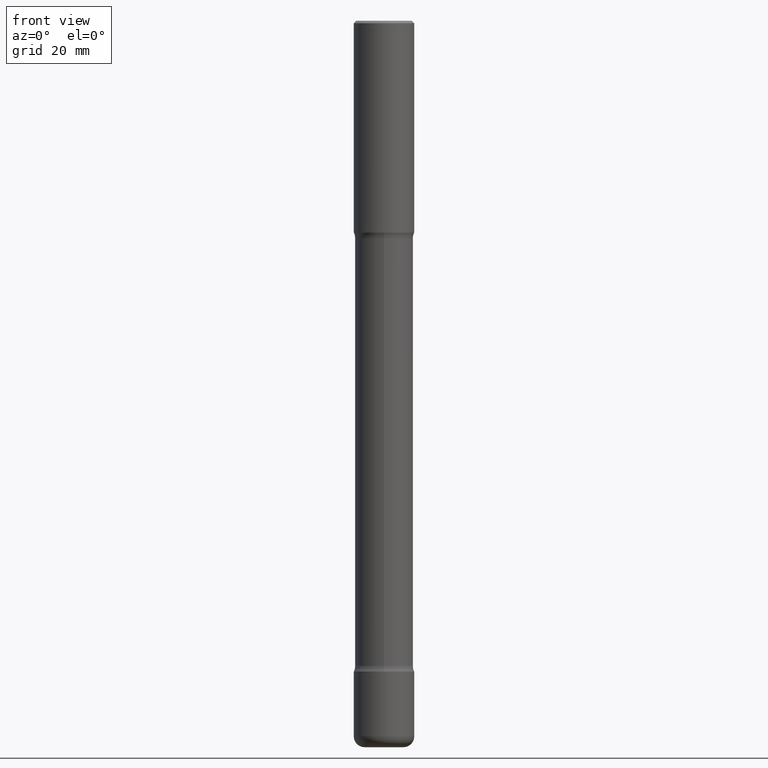
[diagram: clean part render]
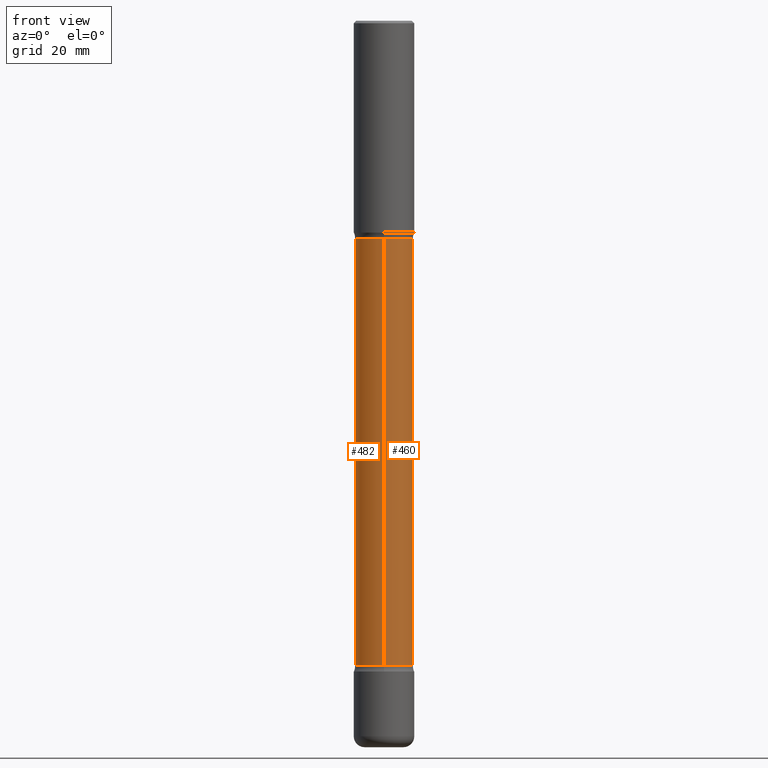
[diagram: same view with one multi-face feature highlighted, each face labeled with its STEP entity id]
A machine part, front view. The highlighted faces form ONE feature: a constant-radius fillet chain: 2 tangent blend faces with common blend radius 6.096 mm. The faces share edges in the B-rep.
Their STEP definitions:
[1] entity #482 (Cylinder):
#4 = DIRECTION ( 'NONE',  ( 2.598079946832093802E-29, -3.272933499350004920E-15, -1.000000000000000000 ) ) ;
#36 = CARTESIAN_POINT ( 'NONE',  ( 1.675911042644833344E-15, 0.2399999999999813116, -5.326010205144338983 ) ) ;
#45 = DIRECTION ( 'NONE',  ( 2.598079946832093802E-29, -3.272933499350004525E-15, -1.000000000000000000 ) ) ;
#53 = EDGE_CURVE ( 'NONE', #251, #142, #225, .T. ) ;
#73 = AXIS2_PLACEMENT_3D ( 'NONE', #444, #4, #183 ) ;
#79 = CARTESIAN_POINT ( 'NONE',  ( -1.680822009453992684E-15, -0.2400000000000076239, -1.798989794855665236 ) ) ;
#84 = EDGE_CURVE ( 'NONE', #142, #150, #239, .T. ) ;
#85 = CYLINDRICAL_SURFACE ( 'NONE', #303, 0.2400000000000002409 ) ;
#87 = DIRECTION ( 'NONE',  ( 2.598079946832093802E-29, -3.272933499350004920E-15, -1.000000000000000000 ) ) ;
#101 = DIRECTION ( 'NONE',  ( 2.598079946832093802E-29, -3.272933499350004525E-15, -1.000000000000000000 ) ) ;
#126 = EDGE_CURVE ( 'NONE', #251, #405, #421, .T. ) ;
#139 = VECTOR ( 'NONE', #45, 39.37007874015748143 ) ;
#142 = VERTEX_POINT ( 'NONE', #254 ) ;
#150 = VERTEX_POINT ( 'NONE', #36 ) ;
#183 = DIRECTION ( 'NONE',  ( 6.982962677686265922E-15, 1.000000000000000000, -4.553079989440439881E-15 ) ) ;
#225 = LINE ( 'NONE', #447, #302 ) ;
#239 = CIRCLE ( 'NONE', #73, 0.2399999999999999356 ) ;
#247 = AXIS2_PLACEMENT_3D ( 'NONE', #472, #87, #263 ) ;
#251 = VERTEX_POINT ( 'NONE', #79 ) ;
#254 = CARTESIAN_POINT ( 'NONE',  ( -1.680822009453894274E-15, -0.2400000000000185318, -5.326010205144336318 ) ) ;
#263 = DIRECTION ( 'NONE',  ( 6.982962677686265922E-15, 1.000000000000000000, -3.414809992080321627E-15 ) ) ;
#302 = VECTOR ( 'NONE', #101, 39.37007874015748143 ) ;
#303 = AXIS2_PLACEMENT_3D ( 'NONE', #307, #343, #516 ) ;
#307 = CARTESIAN_POINT ( 'NONE',  ( 1.476819480001517141E-28, -2.081229563337566536E-14, -6.000000000000001776 ) ) ;
#328 = EDGE_LOOP ( 'NONE', ( #530, #539, #487, #436 ) ) ;
#343 = DIRECTION ( 'NONE',  ( 2.598079946832093802E-29, -3.272933499350004920E-15, -1.000000000000000000 ) ) ;
#346 = FACE_OUTER_BOUND ( 'NONE', #328, .T. ) ;
#405 = VERTEX_POINT ( 'NONE', #560 ) ;
#421 = CIRCLE ( 'NONE', #247, 0.2400000000000005185 ) ;
#429 = LINE ( 'NONE', #518, #139 ) ;
#436 = ORIENTED_EDGE ( 'NONE', *, *, #84, .F. ) ;
#444 = CARTESIAN_POINT ( 'NONE',  ( 1.301711542963119448E-28, -1.860637185557252676E-14, -5.326010205144338094 ) ) ;
#447 = CARTESIAN_POINT ( 'NONE',  ( -1.646519519465021226E-15, -0.2400000000000210298, -6.000000000000000888 ) ) ;
#472 = CARTESIAN_POINT ( 'NONE',  ( 3.853634429592694340E-29, -7.062668601847533833E-15, -1.798989794855666124 ) ) ;
#482 = ADVANCED_FACE ( 'NONE', ( #346 ), #85, .T. ) ;
#487 = ORIENTED_EDGE ( 'NONE', *, *, #517, .T. ) ;
#516 = DIRECTION ( 'NONE',  ( 6.982962677686265922E-15, 1.000000000000000000, -4.553079989440434359E-15 ) ) ;
#517 = EDGE_CURVE ( 'NONE', #405, #150, #429, .T. ) ;
#518 = CARTESIAN_POINT ( 'NONE',  ( 1.675911042644853263E-15, 0.2399999999999794520, -6.000000000000002665 ) ) ;
#530 = ORIENTED_EDGE ( 'NONE', *, *, #53, .F. ) ;
#539 = ORIENTED_EDGE ( 'NONE', *, *, #126, .T. ) ;
#560 = CARTESIAN_POINT ( 'NONE',  ( 1.675911042644746175E-15, 0.2399999999999934408, -1.798989794855667013 ) ) ;
[2] entity #460 (Cylinder):
#15 = EDGE_LOOP ( 'NONE', ( #78, #550, #253, #234 ) ) ;
#36 = CARTESIAN_POINT ( 'NONE',  ( 1.675911042644833344E-15, 0.2399999999999813116, -5.326010205144338983 ) ) ;
#39 = DIRECTION ( 'NONE',  ( 6.982962677686265922E-15, 1.000000000000000000, -4.553079989440439881E-15 ) ) ;
#45 = DIRECTION ( 'NONE',  ( 2.598079946832093802E-29, -3.272933499350004525E-15, -1.000000000000000000 ) ) ;
#53 = EDGE_CURVE ( 'NONE', #251, #142, #225, .T. ) ;
#78 = ORIENTED_EDGE ( 'NONE', *, *, #470, .T. ) ;
#79 = CARTESIAN_POINT ( 'NONE',  ( -1.680822009453992684E-15, -0.2400000000000076239, -1.798989794855665236 ) ) ;
#101 = DIRECTION ( 'NONE',  ( 2.598079946832093802E-29, -3.272933499350004525E-15, -1.000000000000000000 ) ) ;
#139 = VECTOR ( 'NONE', #45, 39.37007874015748143 ) ;
#142 = VERTEX_POINT ( 'NONE', #254 ) ;
#148 = AXIS2_PLACEMENT_3D ( 'NONE', #383, #554, #212 ) ;
#150 = VERTEX_POINT ( 'NONE', #36 ) ;
#209 = AXIS2_PLACEMENT_3D ( 'NONE', #380, #552, #217 ) ;
#212 = DIRECTION ( 'NONE',  ( 6.982962677686265922E-15, 1.000000000000000000, -3.414809992080321627E-15 ) ) ;
#216 = CIRCLE ( 'NONE', #266, 0.2399999999999999356 ) ;
#217 = DIRECTION ( 'NONE',  ( 6.982962677686265922E-15, 1.000000000000000000, -4.553079989440434359E-15 ) ) ;
#225 = LINE ( 'NONE', #447, #302 ) ;
#234 = ORIENTED_EDGE ( 'NONE', *, *, #517, .F. ) ;
#251 = VERTEX_POINT ( 'NONE', #79 ) ;
#253 = ORIENTED_EDGE ( 'NONE', *, *, #283, .F. ) ;
#254 = CARTESIAN_POINT ( 'NONE',  ( -1.680822009453894274E-15, -0.2400000000000185318, -5.326010205144336318 ) ) ;
#266 = AXIS2_PLACEMENT_3D ( 'NONE', #535, #549, #39 ) ;
#283 = EDGE_CURVE ( 'NONE', #150, #142, #216, .T. ) ;
#302 = VECTOR ( 'NONE', #101, 39.37007874015748143 ) ;
#338 = CYLINDRICAL_SURFACE ( 'NONE', #209, 0.2400000000000002409 ) ;
#380 = CARTESIAN_POINT ( 'NONE',  ( 1.476819480001517141E-28, -2.081229563337566536E-14, -6.000000000000001776 ) ) ;
#382 = FACE_OUTER_BOUND ( 'NONE', #15, .T. ) ;
#383 = CARTESIAN_POINT ( 'NONE',  ( 3.853634429592694340E-29, -7.062668601847533833E-15, -1.798989794855666124 ) ) ;
#405 = VERTEX_POINT ( 'NONE', #560 ) ;
#429 = LINE ( 'NONE', #518, #139 ) ;
#447 = CARTESIAN_POINT ( 'NONE',  ( -1.646519519465021226E-15, -0.2400000000000210298, -6.000000000000000888 ) ) ;
#460 = ADVANCED_FACE ( 'NONE', ( #382 ), #338, .T. ) ;
#469 = CIRCLE ( 'NONE', #148, 0.2400000000000005185 ) ;
#470 = EDGE_CURVE ( 'NONE', #405, #251, #469, .T. ) ;
#517 = EDGE_CURVE ( 'NONE', #405, #150, #429, .T. ) ;
#518 = CARTESIAN_POINT ( 'NONE',  ( 1.675911042644853263E-15, 0.2399999999999794520, -6.000000000000002665 ) ) ;
#535 = CARTESIAN_POINT ( 'NONE',  ( 1.301711542963119448E-28, -1.860637185557252676E-14, -5.326010205144338094 ) ) ;
#549 = DIRECTION ( 'NONE',  ( 2.598079946832093802E-29, -3.272933499350004920E-15, -1.000000000000000000 ) ) ;
#550 = ORIENTED_EDGE ( 'NONE', *, *, #53, .T. ) ;
#552 = DIRECTION ( 'NONE',  ( 2.598079946832093802E-29, -3.272933499350004920E-15, -1.000000000000000000 ) ) ;
#554 = DIRECTION ( 'NONE',  ( 2.598079946832093802E-29, -3.272933499350004920E-15, -1.000000000000000000 ) ) ;
#560 = CARTESIAN_POINT ( 'NONE',  ( 1.675911042644746175E-15, 0.2399999999999934408, -1.798989794855667013 ) ) ;